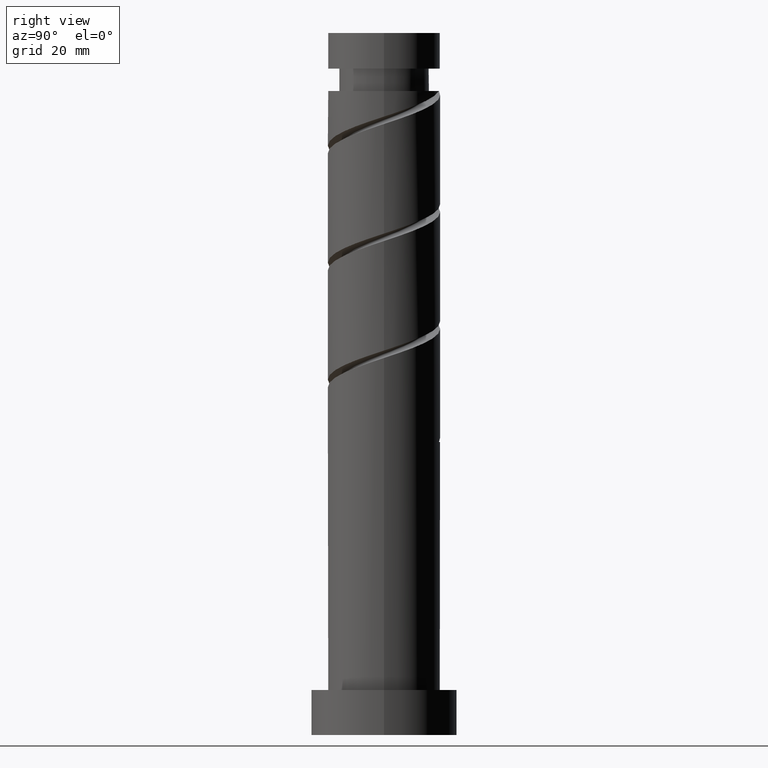
[diagram: clean part render]
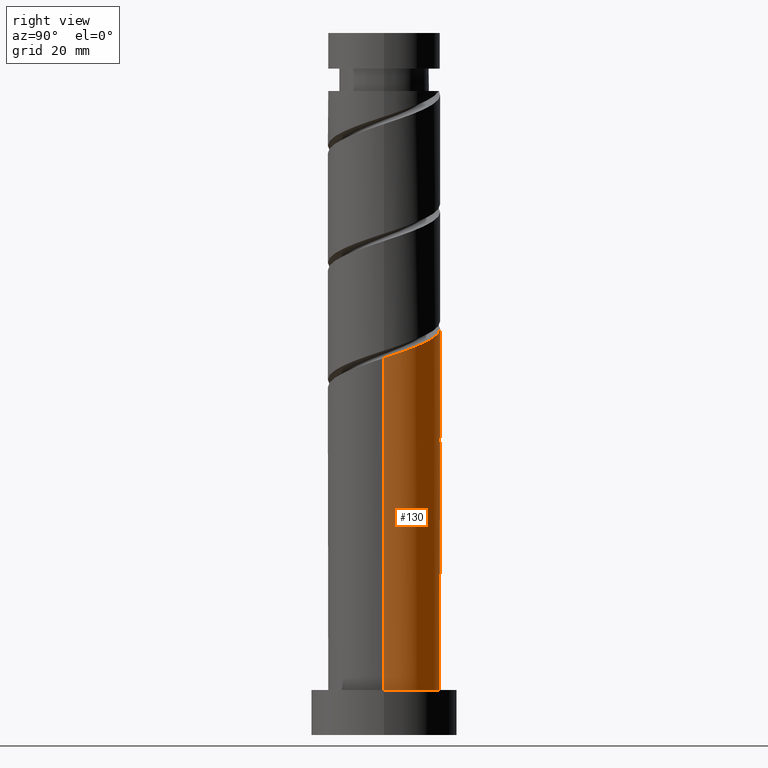
[diagram: same view with one face highlighted and labeled with its STEP entity id]
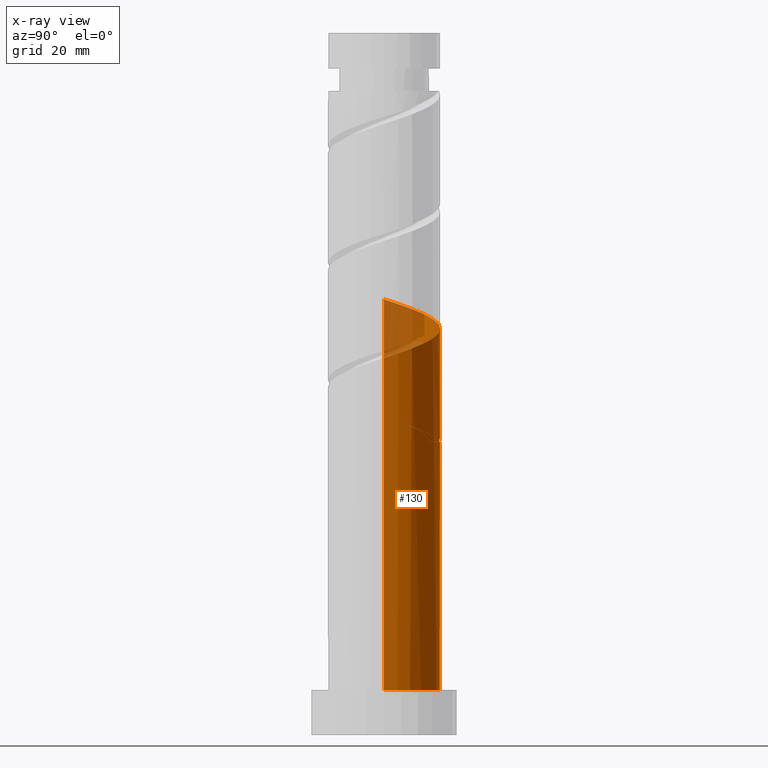
[diagram: x-ray of the same camera — body ghosted, the highlighted face saturated]
A machine part, right view. The second image highlights one B-rep face of the part: STEP entity #130.
The next image is the same camera in x-ray: the body ghosted, the highlighted face saturated — about 8% of this face is hidden behind the body in this view.
In plain terms, the highlighted cylindrical surface (partial cylindrical patch) has radius 10 mm, axis along (-0, -0, -1).
Its self-contained STEP definition (entity closure, byte-faithful):
#31 = VERTEX_POINT ( 'NONE', #844 ) ;
#45 = DIRECTION ( 'NONE',  ( -0.000000000000000000, -0.000000000000000000, -1.000000000000000000 ) ) ;
#51 = VECTOR ( 'NONE', #45, 1000.000000000000000 ) ;
#52 = CARTESIAN_POINT ( 'NONE',  ( -9.755398771694949289, 2.709383306013496195, 76.65474657295682448 ) ) ;
#63 = DIRECTION ( 'NONE',  ( -0.000000000000000000, -0.000000000000000000, -1.000000000000000000 ) ) ;
#70 = CARTESIAN_POINT ( 'NONE',  ( 10.00000000000001776, 1.005037815259213652, 67.47008204022779410 ) ) ;
#98 = CARTESIAN_POINT ( 'NONE',  ( -1.989974874213240597, 9.800000000000016698, 52.17557990629020992 ) ) ;
#130 = ADVANCED_FACE ( 'NONE', ( #1170 ), #705, .T. ) ;
#147 = CIRCLE ( 'NONE', #871, 10.00000000000000178 ) ;
#155 = EDGE_CURVE ( 'NONE', #31, #857, #1257, .T. ) ;
#164 = CARTESIAN_POINT ( 'NONE',  ( -10.00000000000001776, 0.5697373744643251525, 77.36293304227935153 ) ) ;
#167 = VERTEX_POINT ( 'NONE', #1454 ) ;
#173 = DIRECTION ( 'NONE',  ( -1.000000000000000000, 0.000000000000000000, 0.000000000000000000 ) ) ;
#193 = CARTESIAN_POINT ( 'NONE',  ( 7.926016667075098887, 6.299747843123542523, 69.36307990629020992 ) ) ;
#194 = DIRECTION ( 'NONE',  ( -1.000000000000000000, 0.000000000000000000, 0.000000000000000000 ) ) ;
#215 = CARTESIAN_POINT ( 'NONE',  ( -10.00000000000000178, 0.000000000000000000, 8.000000000000000000 ) ) ;
#217 = CARTESIAN_POINT ( 'NONE',  ( -3.542142389393700075, 9.484818943287860904, 52.69641323962353852 ) ) ;
#254 = CARTESIAN_POINT ( 'NONE',  ( -2.709383306013491755, 9.755398771694942184, 53.73807990629020281 ) ) ;
#268 = CARTESIAN_POINT ( 'NONE',  ( -8.705417805181470570, 4.920945116258618413, 56.34224657295687422 ) ) ;
#269 = ORIENTED_EDGE ( 'NONE', *, *, #1434, .F. ) ;
#315 = CARTESIAN_POINT ( 'NONE',  ( 10.00000000000000178, 1.224646799147353454E-15, 8.000000000000000000 ) ) ;
#320 = CARTESIAN_POINT ( 'NONE',  ( -9.755398771694949289, 2.709383306013496195, 55.82141323962352430 ) ) ;
#324 = EDGE_CURVE ( 'NONE', #1262, #167, #1417, .T. ) ;
#330 = CARTESIAN_POINT ( 'NONE',  ( -7.370218964083909086, 6.758688661379384399, 54.25891323962354562 ) ) ;
#345 = EDGE_CURVE ( 'NONE', #753, #1028, #147, .T. ) ;
#348 = EDGE_LOOP ( 'NONE', ( #1298, #846, #1169, #269, #409, #487, #1543, #1177 ) ) ;
#409 = ORIENTED_EDGE ( 'NONE', *, *, #324, .F. ) ;
#415 = CARTESIAN_POINT ( 'NONE',  ( 1.135787973490359315, 9.935289914203561779, 71.96724657295686711 ) ) ;
#427 = CARTESIAN_POINT ( 'NONE',  ( -6.299747843123544300, 7.926016667075098887, 53.73807990629018860 ) ) ;
#430 = CARTESIAN_POINT ( 'NONE',  ( -6.299747843123544300, 7.926016667075098887, 74.57141323962353852 ) ) ;
#431 = CARTESIAN_POINT ( 'NONE',  ( 0.000000000000000000, 0.000000000000000000, 125.0000000000000000 ) ) ;
#436 = CARTESIAN_POINT ( 'NONE',  ( -9.098044428369613357, 4.150371980848585274, 55.30057990629021702 ) ) ;
#440 = CARTESIAN_POINT ( 'NONE',  ( 8.705417805181483004, 4.920945116258622853, 68.84224657295685290 ) ) ;
#441 = CARTESIAN_POINT ( 'NONE',  ( -10.00000000000000711, 1.271415116015856806E-14, 58.04871568109381741 ) ) ;
#460 = AXIS2_PLACEMENT_3D ( 'NONE', #506, #1001, #173 ) ;
#487 = ORIENTED_EDGE ( 'NONE', *, *, #1249, .T. ) ;
#495 = VERTEX_POINT ( 'NONE', #1049 ) ;
#506 = CARTESIAN_POINT ( 'NONE',  ( 0.000000000000000000, 0.000000000000000000, 52.17557990629020992 ) ) ;
#509 = CARTESIAN_POINT ( 'NONE',  ( -10.00000000000000355, 1.005037815259219869, 57.71441110568597566 ) ) ;
#632 = CARTESIAN_POINT ( 'NONE',  ( 10.00000000000000178, 1.224646799147353454E-15, 125.0000000000000000 ) ) ;
#661 = CARTESIAN_POINT ( 'NONE',  ( 6.758688661379387952, 7.370218964083908197, 69.88391323962355273 ) ) ;
#668 = CARTESIAN_POINT ( 'NONE',  ( 9.484818943287860904, 3.542142389393697854, 68.32141323962352430 ) ) ;
#669 =( BOUNDED_CURVE ( )  B_SPLINE_CURVE ( 2, ( #1045, #70, #1533, #668, #440, #193, #661, #679, #1518, #1524, #415, #898, #1292, #1387, #1282, #430, #1152, #1407, #915, #52, #1274, #164, #936 ),
 .UNSPECIFIED., .F., .T. ) 
 B_SPLINE_CURVE_WITH_KNOTS ( ( 3, 2, 2, 2, 2, 2, 2, 2, 2, 2, 2, 3 ),
 ( 0.1795322023138552214, 0.1875000000000000000, 0.1999999999999999556, 0.2125000000000000222, 0.2249999999999999778, 0.2375000000000000444, 0.2500000000000000000, 0.2624999999999999556, 0.2750000000000000222, 0.2874999999999999778, 0.3000000000000000444, 0.3045322023138552492 ),
 .UNSPECIFIED. ) 
 CURVE ( )  GEOMETRIC_REPRESENTATION_ITEM ( )  RATIONAL_B_SPLINE_CURVE ( ( 0.9039174447099376231, 0.9019565955404671431, 0.9090909090909153889, 0.8978984914501316750, 0.9090909090909153889, 0.8978984914501316750, 0.9090909090909153889, 0.8978984914501316750, 0.9090909090909153889, 0.8978984914501316750, 0.9090909090909153889, 0.8978984914501316750, 0.9090909090909153889, 0.8978984914501316750, 0.9090909090909153889, 0.8978984914501316750, 0.9090909090909153889, 0.8978984914501316750, 0.9090909090909153889, 0.8978984914501316750, 0.9090909090909153889, 0.9050328050005798097, 0.9039174447099376231 ) ) 
 REPRESENTATION_ITEM ( '' )  );
#673 = CARTESIAN_POINT ( 'NONE',  ( -10.00000000000001776, 0.5697373744643267068, 56.52959970894601582 ) ) ;
#679 = CARTESIAN_POINT ( 'NONE',  ( 5.591360655683670799, 8.440690085044266766, 70.40474657295685290 ) ) ;
#680 = LINE ( 'NONE', #1062, #842 ) ;
#702 = VERTEX_POINT ( 'NONE', #1398 ) ;
#705 = CYLINDRICAL_SURFACE ( 'NONE', #723, 10.00000000000000178 ) ;
#723 = AXIS2_PLACEMENT_3D ( 'NONE', #431, #927, #194 ) ;
#724 = EDGE_CURVE ( 'NONE', #702, #495, #669, .T. ) ;
#737 = VECTOR ( 'NONE', #1127, 1000.000000000000000 ) ;
#753 = VERTEX_POINT ( 'NONE', #315 ) ;
#795 = CARTESIAN_POINT ( 'NONE',  ( -10.00000000000001954, -1.019530989257991794E-14, 56.71911079815327383 ) ) ;
#842 = VECTOR ( 'NONE', #63, 1000.000000000000000 ) ;
#844 = CARTESIAN_POINT ( 'NONE',  ( -10.00000000000000711, 1.271415116015856806E-14, 58.04871568109381741 ) ) ;
#846 = ORIENTED_EDGE ( 'NONE', *, *, #1300, .T. ) ;
#857 = VERTEX_POINT ( 'NONE', #1332 ) ;
#871 = AXIS2_PLACEMENT_3D ( 'NONE', #1175, #1546, #1075 ) ;
#881 = CARTESIAN_POINT ( 'NONE',  ( -10.00000000000000178, 0.000000000000000000, 125.0000000000000000 ) ) ;
#898 = CARTESIAN_POINT ( 'NONE',  ( -0.4378073590327820064, 10.11518105671217072, 72.48807990629019571 ) ) ;
#915 = CARTESIAN_POINT ( 'NONE',  ( -9.098044428369613357, 4.150371980848585274, 76.13391323962352430 ) ) ;
#927 = DIRECTION ( 'NONE',  ( -0.000000000000000000, -0.000000000000000000, -1.000000000000000000 ) ) ;
#936 = CARTESIAN_POINT ( 'NONE',  ( -10.00000000000001954, -1.019530989257991794E-14, 77.55244413148662375 ) ) ;
#948 = CARTESIAN_POINT ( 'NONE',  ( -9.935289914203560002, 1.135787973490356872, 56.34224657295688132 ) ) ;
#960 = CARTESIAN_POINT ( 'NONE',  ( -4.920945116258623742, 8.705417805181483004, 53.21724657295688843 ) ) ;
#976 = CARTESIAN_POINT ( 'NONE',  ( -7.926016667075085564, 6.299747843123536306, 55.82141323962353852 ) ) ;
#992 = CARTESIAN_POINT ( 'NONE',  ( -4.150371980848577280, 9.098044428369597370, 54.25891323962354562 ) ) ;
#1001 = DIRECTION ( 'NONE',  ( 0.000000000000000000, -0.000000000000000000, -1.000000000000000000 ) ) ;
#1005 = CARTESIAN_POINT ( 'NONE',  ( -9.800000000000004263, 1.989974874213242373, 57.38391323962354562 ) ) ;
#1024 = LINE ( 'NONE', #881, #51 ) ;
#1028 = VERTEX_POINT ( 'NONE', #215 ) ;
#1045 = CARTESIAN_POINT ( 'NONE',  ( 10.00000000000001954, 8.815944436524987467E-15, 67.13577746481995234 ) ) ;
#1049 = CARTESIAN_POINT ( 'NONE',  ( -10.00000000000001776, -1.019530989257991794E-14, 77.55244413148662375 ) ) ;
#1062 = CARTESIAN_POINT ( 'NONE',  ( -10.00000000000000178, 0.000000000000000000, 125.0000000000000000 ) ) ;
#1075 = DIRECTION ( 'NONE',  ( 1.000000000000000000, 0.000000000000000000, 0.000000000000000000 ) ) ;
#1095 = CARTESIAN_POINT ( 'NONE',  ( -1.135787973490353542, 9.935289914203549344, 53.21724657295688843 ) ) ;
#1127 = DIRECTION ( 'NONE',  ( -0.000000000000000000, -0.000000000000000000, -1.000000000000000000 ) ) ;
#1139 = CARTESIAN_POINT ( 'NONE',  ( -1.989974874213240597, 9.800000000000016698, 52.17557990629020992 ) ) ;
#1145 = CIRCLE ( 'NONE', #460, 10.00000000000000178 ) ;
#1152 = CARTESIAN_POINT ( 'NONE',  ( -7.370218964083909086, 6.758688661379384399, 75.09224657295690974 ) ) ;
#1168 = CARTESIAN_POINT ( 'NONE',  ( 1.989974874213244593, 9.800000000000004263, 52.17557990629020992 ) ) ;
#1169 = ORIENTED_EDGE ( 'NONE', *, *, #345, .T. ) ;
#1170 = FACE_OUTER_BOUND ( 'NONE', #348, .T. ) ;
#1175 = CARTESIAN_POINT ( 'NONE',  ( 0.000000000000000000, 0.000000000000000000, 8.000000000000000000 ) ) ;
#1177 = ORIENTED_EDGE ( 'NONE', *, *, #1183, .F. ) ;
#1183 = EDGE_CURVE ( 'NONE', #495, #31, #1024, .T. ) ;
#1199 = CARTESIAN_POINT ( 'NONE',  ( -6.758688661379372853, 7.370218964083900204, 55.30057990629020992 ) ) ;
#1244 = LINE ( 'NONE', #632, #737 ) ;
#1249 = EDGE_CURVE ( 'NONE', #1262, #857, #1145, .T. ) ;
#1257 =( BOUNDED_CURVE ( )  B_SPLINE_CURVE ( 2, ( #441, #509, #1005, #1486, #268, #976, #1199, #1313, #992, #254, #1095, #1290, #1168 ),
 .UNSPECIFIED., .F., .T. ) 
 B_SPLINE_CURVE_WITH_KNOTS ( ( 3, 2, 2, 2, 2, 2, 3 ),
 ( 0.9295322023138552492, 0.9375000000000000000, 0.9499999999999999556, 0.9625000000000000222, 0.9749999999999999778, 0.9875000000000000444, 1.000000000000000000 ),
 .UNSPECIFIED. ) 
 CURVE ( )  GEOMETRIC_REPRESENTATION_ITEM ( )  RATIONAL_B_SPLINE_CURVE ( ( 0.9039174447099317389, 0.9019565955404611479, 0.9090909090909095047, 0.8978984914501257908, 0.9090909090909095047, 0.8978984914501257908, 0.9090909090909095047, 0.8978984914501257908, 0.9090909090909095047, 0.8978984914501257908, 0.9090909090909095047, 0.8978984914501257908, 0.9090909090909095047 ) ) 
 REPRESENTATION_ITEM ( '' )  );
#1262 = VERTEX_POINT ( 'NONE', #1139 ) ;
#1274 = CARTESIAN_POINT ( 'NONE',  ( -9.935289914203560002, 1.135787973490356872, 77.17557990629020992 ) ) ;
#1282 = CARTESIAN_POINT ( 'NONE',  ( -4.920945116258623742, 8.705417805181483004, 74.05057990629020992 ) ) ;
#1290 = CARTESIAN_POINT ( 'NONE',  ( 0.4378073590327857256, 10.11518105671215473, 52.69641323962353141 ) ) ;
#1292 = CARTESIAN_POINT ( 'NONE',  ( -1.989974874213241041, 9.800000000000016698, 73.00891323962353852 ) ) ;
#1298 = ORIENTED_EDGE ( 'NONE', *, *, #724, .F. ) ;
#1300 = EDGE_CURVE ( 'NONE', #702, #753, #1244, .T. ) ;
#1313 = CARTESIAN_POINT ( 'NONE',  ( -5.591360655683661918, 8.440690085044259661, 54.77974657295686711 ) ) ;
#1332 = CARTESIAN_POINT ( 'NONE',  ( 1.989974874213244593, 9.800000000000004263, 52.17557990629020992 ) ) ;
#1387 = CARTESIAN_POINT ( 'NONE',  ( -3.542142389393700075, 9.484818943287860904, 73.52974657295685290 ) ) ;
#1398 = CARTESIAN_POINT ( 'NONE',  ( 10.00000000000001776, 8.815944436524987467E-15, 67.13577746481995234 ) ) ;
#1407 = CARTESIAN_POINT ( 'NONE',  ( -8.440690085044268542, 5.591360655683670799, 75.61307990629020992 ) ) ;
#1417 =( BOUNDED_CURVE ( )  B_SPLINE_CURVE ( 2, ( #98, #217, #960, #427, #330, #1436, #436, #320, #948, #673, #795 ),
 .UNSPECIFIED., .F., .T. ) 
 B_SPLINE_CURVE_WITH_KNOTS ( ( 3, 2, 2, 2, 2, 3 ),
 ( 0.000000000000000000, 0.01249999999999995559, 0.02500000000000002220, 0.03749999999999997780, 0.05000000000000004441, 0.05453220231385523531 ),
 .UNSPECIFIED. ) 
 CURVE ( )  GEOMETRIC_REPRESENTATION_ITEM ( )  RATIONAL_B_SPLINE_CURVE ( ( 0.9090909090909153889, 0.8978984914501316750, 0.9090909090909153889, 0.8978984914501316750, 0.9090909090909153889, 0.8978984914501316750, 0.9090909090909153889, 0.8978984914501316750, 0.9090909090909153889, 0.9050328050005798097, 0.9039174447099376231 ) ) 
 REPRESENTATION_ITEM ( '' )  );
#1434 = EDGE_CURVE ( 'NONE', #167, #1028, #680, .T. ) ;
#1436 = CARTESIAN_POINT ( 'NONE',  ( -8.440690085044268542, 5.591360655683670799, 54.77974657295686711 ) ) ;
#1454 = CARTESIAN_POINT ( 'NONE',  ( -10.00000000000001776, -1.019530989257991794E-14, 56.71911079815327383 ) ) ;
#1486 = CARTESIAN_POINT ( 'NONE',  ( -9.484818943287846693, 3.542142389393697854, 56.86307990629020992 ) ) ;
#1518 = CARTESIAN_POINT ( 'NONE',  ( 4.150371980848587938, 9.098044428369613357, 70.92557990629022413 ) ) ;
#1524 = CARTESIAN_POINT ( 'NONE',  ( 2.709383306013498416, 9.755398771694949289, 71.44641323962351009 ) ) ;
#1533 = CARTESIAN_POINT ( 'NONE',  ( 9.800000000000016698, 1.989974874213241485, 67.80057990629020992 ) ) ;
#1543 = ORIENTED_EDGE ( 'NONE', *, *, #155, .F. ) ;
#1546 = DIRECTION ( 'NONE',  ( 0.000000000000000000, 0.000000000000000000, 1.000000000000000000 ) ) ;